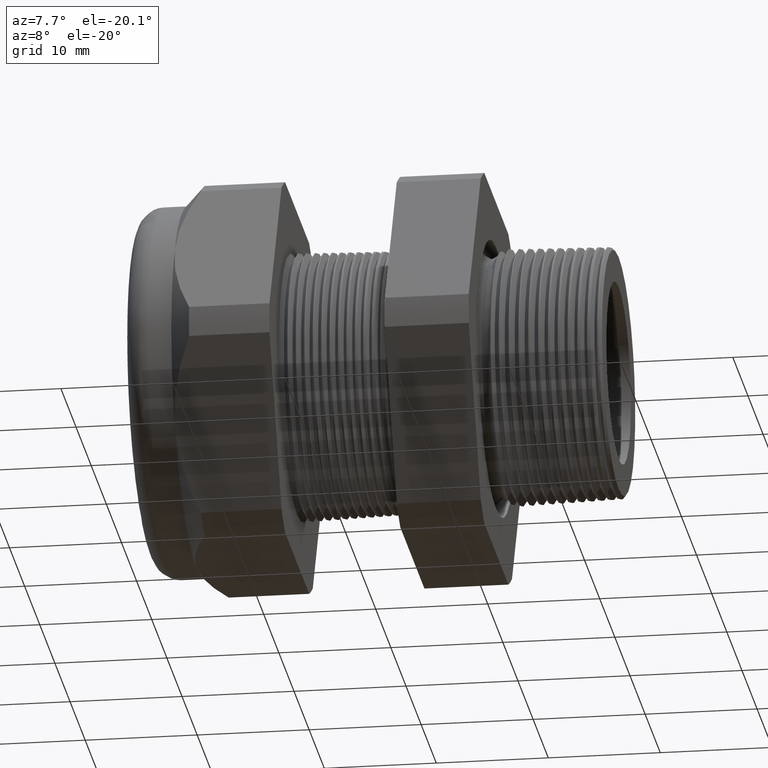
[diagram: clean part render]
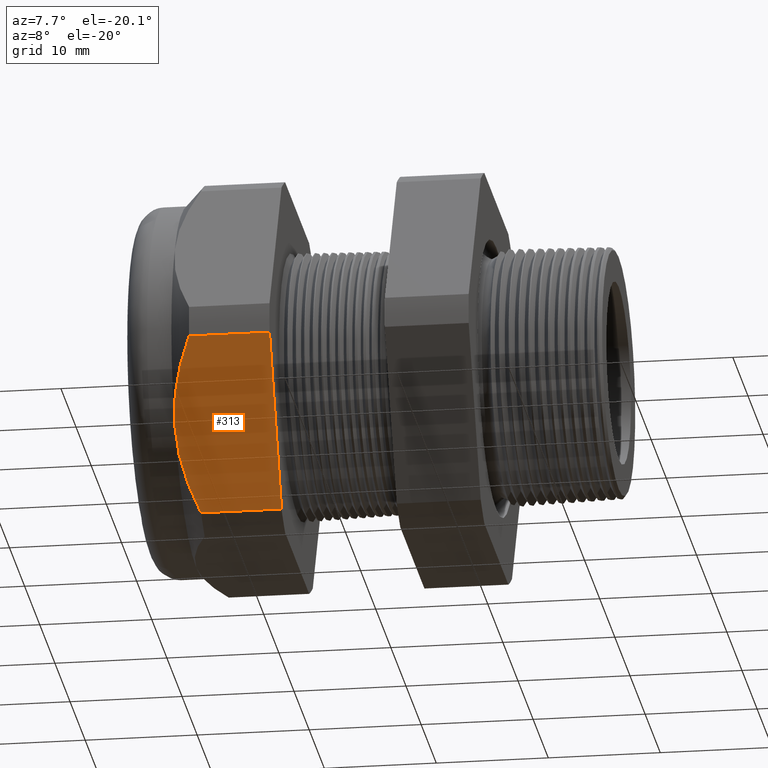
[diagram: same view with one face highlighted and labeled with its STEP entity id]
A machine part, auxiliary view. The second image highlights one B-rep face of the part: STEP entity #313.
In plain terms, the highlighted planar face has unit normal (0, -0.866, -0.5).
Its self-contained STEP definition (entity closure, byte-faithful):
#313 = ADVANCED_FACE ( 'NONE', ( #1708 ), #1707, .T. ) ;
#314 = EDGE_LOOP ( 'NONE', ( #315, #319, #322, #324, #325 ) ) ;
#315 = ORIENTED_EDGE ( 'NONE', *, *, #316, .T. ) ;
#316 = EDGE_CURVE ( 'NONE', #317, #318, #1761, .T. ) ;
#317 = VERTEX_POINT ( 'NONE', #1757 ) ;
#318 = VERTEX_POINT ( 'NONE', #1756 ) ;
#319 = ORIENTED_EDGE ( 'NONE', *, *, #320, .T. ) ;
#320 = EDGE_CURVE ( 'NONE', #318, #321, #1755, .T. ) ;
#321 = VERTEX_POINT ( 'NONE', #1754 ) ;
#322 = ORIENTED_EDGE ( 'NONE', *, *, #323, .T. ) ;
#323 = EDGE_CURVE ( 'NONE', #321, #335, #1743, .T. ) ;
#324 = ORIENTED_EDGE ( 'NONE', *, *, #333, .F. ) ;
#325 = ORIENTED_EDGE ( 'NONE', *, *, #381, .F. ) ;
#333 = EDGE_CURVE ( 'NONE', #334, #335, #1784, .T. ) ;
#334 = VERTEX_POINT ( 'NONE', #1780 ) ;
#335 = VERTEX_POINT ( 'NONE', #1779 ) ;
#381 = EDGE_CURVE ( 'NONE', #317, #334, #1868, .T. ) ;
#1702 = CARTESIAN_POINT ( 'NONE',  ( 0.1200000000000000900, -0.4063420493440883000, -0.5961949252843793400 ) ) ;
#1703 = AXIS2_PLACEMENT_3D ( 'NONE', #1702, #1763, #1762 ) ;
#1707 = PLANE ( 'NONE',  #1703 ) ;
#1708 = FACE_OUTER_BOUND ( 'NONE', #314, .T. ) ;
#1739 = CARTESIAN_POINT ( 'NONE',  ( -1.364645669291338000, -0.5358248930679733200, -0.3719240612461092200 ) ) ;
#1740 = CARTESIAN_POINT ( 'NONE',  ( -1.364645669291338500, -0.5629165124598851700, -0.3250000000000001800 ) ) ;
#1743 = B_SPLINE_CURVE_WITH_KNOTS ( 'NONE', 3,
 ( #1740, #1739, #1797, #1796, #1795, #1794 ),
 .UNSPECIFIED., .F., .F.,
 ( 4, 2, 4 ),
 ( 0.008163776578903783600, 0.01224274182034620000, 0.01632170706178861700 ),
 .UNSPECIFIED. ) ;
#1744 = CARTESIAN_POINT ( 'NONE',  ( -1.364645669291338500, -0.5629165124598851700, -0.3250000000000001800 ) ) ;
#1745 = CARTESIAN_POINT ( 'NONE',  ( -1.364645669291339100, -0.5696940647084652900, -0.3132609351545070900 ) ) ;
#1746 = CARTESIAN_POINT ( 'NONE',  ( -1.364216759191442700, -0.5765336067434361200, -0.3014145008494348900 ) ) ;
#1747 = CARTESIAN_POINT ( 'NONE',  ( -1.362513212994343100, -0.5901225526399743700, -0.2778777561353256200 ) ) ;
#1748 = CARTESIAN_POINT ( 'NONE',  ( -1.361244147852752800, -0.5968650273424733800, -0.2661994473818493100 ) ) ;
#1749 = CARTESIAN_POINT ( 'NONE',  ( -1.356260635251699000, -0.6169458720203931900, -0.2314184041407926800 ) ) ;
#1750 = CARTESIAN_POINT ( 'NONE',  ( -1.351369503974020800, -0.6301376168794387000, -0.2085696318044401900 ) ) ;
#1751 = CARTESIAN_POINT ( 'NONE',  ( -1.332638942225223600, -0.6692072927766704600, -0.1408989681151861800 ) ) ;
#1752 = CARTESIAN_POINT ( 'NONE',  ( -1.314767232512606100, -0.6945827664818915400, -0.09694735839161411400 ) ) ;
#1753 = CARTESIAN_POINT ( 'NONE',  ( -1.293145669291338600, -0.7194909755756819800, -0.05380507471562082100 ) ) ;
#1754 = CARTESIAN_POINT ( 'NONE',  ( -1.364645669291338500, -0.5629165124598851700, -0.3250000000000001800 ) ) ;
#1755 = B_SPLINE_CURVE_WITH_KNOTS ( 'NONE', 3,
 ( #1753, #1752, #1751, #1750, #1749, #1748, #1747, #1746, #1745, #1744 ),
 .UNSPECIFIED., .F., .F.,
 ( 4, 2, 2, 2, 4 ),
 ( 2.483249165348705300E-007, 0.004082012451910165000, 0.006122894515406979500, 0.007143335547155381600, 0.008163776578903783600 ),
 .UNSPECIFIED. ) ;
#1756 = CARTESIAN_POINT ( 'NONE',  ( -1.293145669291338600, -0.7194909755756819800, -0.05380507471562082100 ) ) ;
#1757 = CARTESIAN_POINT ( 'NONE',  ( -1.010314960629921100, -0.7194909755756819800, -0.05380507471562082100 ) ) ;
#1758 = DIRECTION ( 'NONE',  ( -1.000000000000000000, 0.0000000000000000000, 0.0000000000000000000 ) ) ;
#1759 = VECTOR ( 'NONE', #1758, 39.37007874015748100 ) ;
#1760 = CARTESIAN_POINT ( 'NONE',  ( 0.1200000000000000900, -0.7194909755756819800, -0.05380507471562082100 ) ) ;
#1761 = LINE ( 'NONE', #1760, #1759 ) ;
#1762 = DIRECTION ( 'NONE',  ( 0.0000000000000000000, 0.5000000000000001100, -0.8660254037844386000 ) ) ;
#1763 = DIRECTION ( 'NONE',  ( 0.0000000000000000000, -0.8660254037844386000, -0.5000000000000001100 ) ) ;
#1779 = CARTESIAN_POINT ( 'NONE',  ( -1.293145669291338600, -0.4063420493440881300, -0.5961949252843793400 ) ) ;
#1780 = CARTESIAN_POINT ( 'NONE',  ( -1.010314960629921100, -0.4063420493440881300, -0.5961949252843793400 ) ) ;
#1781 = DIRECTION ( 'NONE',  ( -1.000000000000000000, 0.0000000000000000000, 0.0000000000000000000 ) ) ;
#1782 = VECTOR ( 'NONE', #1781, 39.37007874015748100 ) ;
#1783 = CARTESIAN_POINT ( 'NONE',  ( 0.1200000000000000900, -0.4063420493440881300, -0.5961949252843793400 ) ) ;
#1784 = LINE ( 'NONE', #1783, #1782 ) ;
#1794 = CARTESIAN_POINT ( 'NONE',  ( -1.293145669291338600, -0.4063420493440881300, -0.5961949252843793400 ) ) ;
#1795 = CARTESIAN_POINT ( 'NONE',  ( -1.314794001287756600, -0.4312810962751702500, -0.5529992289074007200 ) ) ;
#1796 = CARTESIAN_POINT ( 'NONE',  ( -1.332917759362547400, -0.4570573558384616300, -0.5083534377146963200 ) ) ;
#1797 = CARTESIAN_POINT ( 'NONE',  ( -1.357805912917037400, -0.5092737903524782200, -0.4179119201463270500 ) ) ;
#1865 = DIRECTION ( 'NONE',  ( 0.0000000000000000000, 0.5000000000000001100, -0.8660254037844386000 ) ) ;
#1866 = VECTOR ( 'NONE', #1865, 39.37007874015748100 ) ;
#1867 = CARTESIAN_POINT ( 'NONE',  ( -1.010314960629921100, -0.4454165124598852300, -0.5285159698893432400 ) ) ;
#1868 = LINE ( 'NONE', #1867, #1866 ) ;